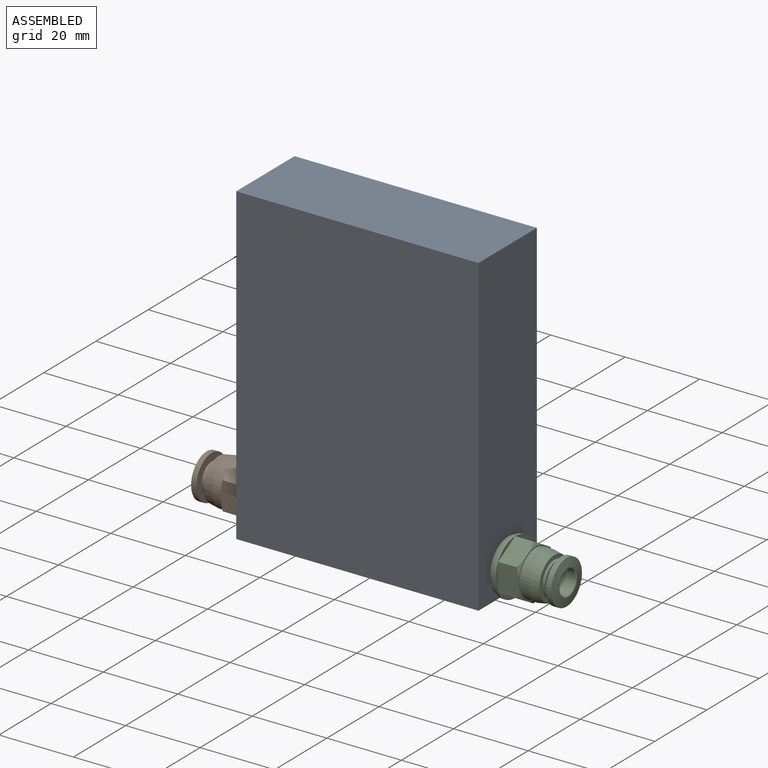
[diagram: assembled view]
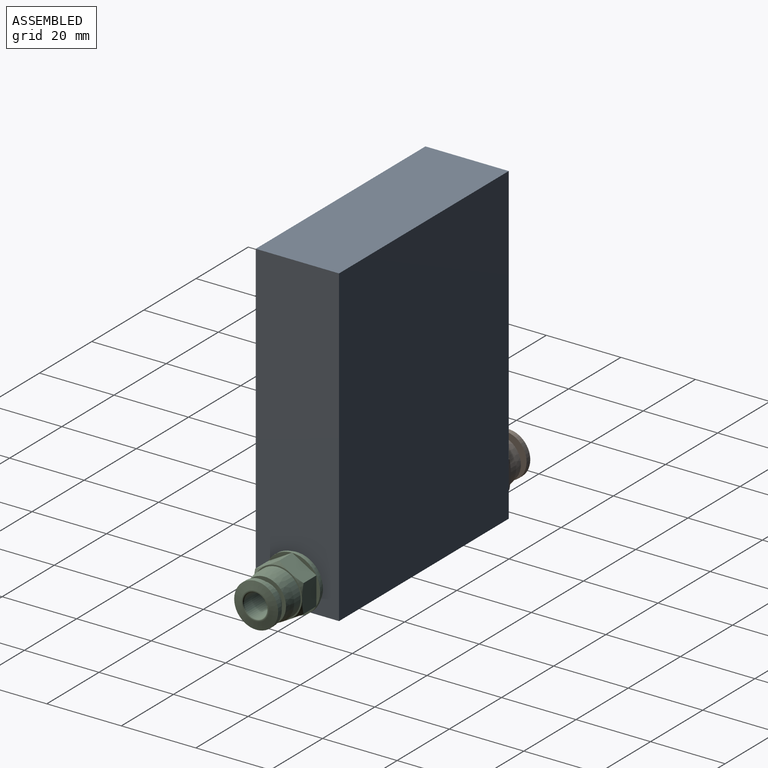
[diagram: assembled view, second angle]
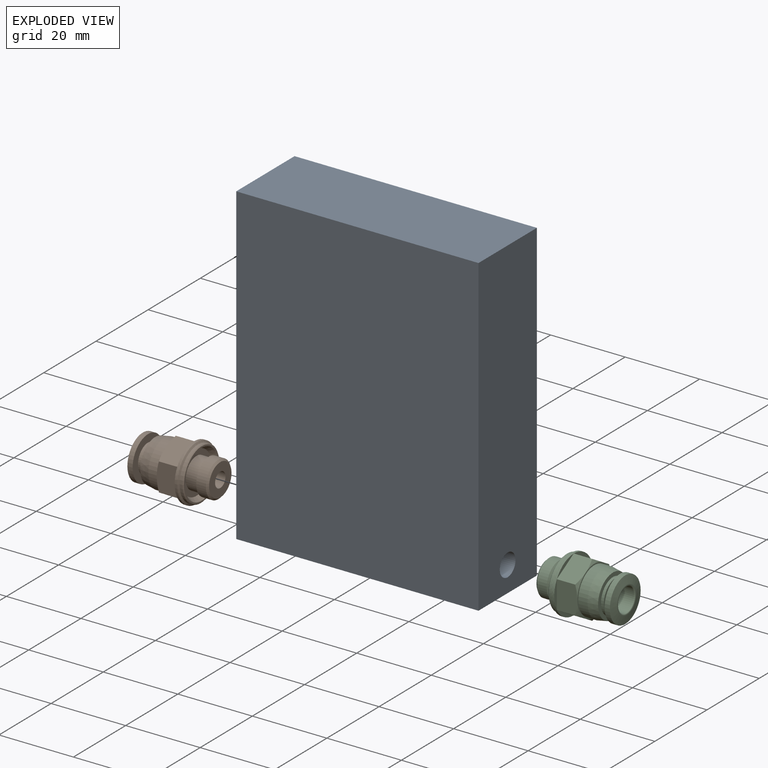
[diagram: exploded view]
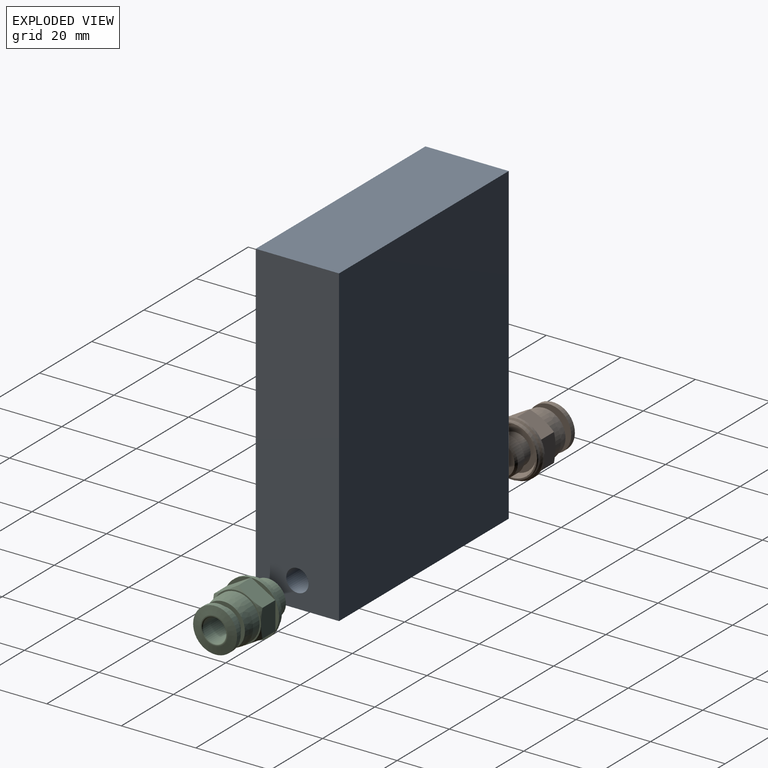
[diagram: exploded view, second angle]
ASSEMBLY  parts=3 mates=2
PART A: 7 faces, bbox 65x22.4x84.3 mm
  f0: plane 84.33x22.35mm, normal (1,0,0), area 1856.6mm2, adj f1,f3,f4,f5,f6
  f1: plane 84.33x65.02mm, normal (0,1,0), area 5483.3mm2, adj f0,f2,f4,f5
  f2: plane 84.33x22.35mm, normal (-1,0,0), area 1856.6mm2, adj f1,f3,f4,f5,f6
  f3: plane 84.33x65.02mm, normal (0,-1,0), area 5483.3mm2, adj f0,f2,f4,f5
  f4: plane 65.02x22.35mm, normal (0,0,1), area 1453.4mm2, adj f0,f1,f2,f3
  f5: plane 65.02x22.35mm, normal (0,0,-1), area 1453.4mm2, adj f0,f1,f2,f3
  f6: cylinder r=3mm len=65.02mm, axis (-1,0,0), area 1225.7mm2, adj f0,f2
PART B: 46 faces, bbox 15x21.2x15 mm
  f0: torus R=3.45mm, axis (0,1,0), area 4.8mm2, adj f1,f18,f20
  f1: cylinder r=3.15mm len=16.1mm, axis (0,1,0), area 318.7mm2, adj f0,f18,f19
  f2: cylinder r=2mm len=4.8mm, axis (0,1,0), area 60.3mm2, adj f19,f21
  f3: cone r=5.9mm half-angle=79.9deg, axis (0,-1,0), area 68.6mm2, adj f4,f20
  f4: cylinder r=5.9mm len=11.8mm, axis (0,1,0), area 51.9mm2, adj f3,f22
  f5: cone r=4.8mm half-angle=45deg, axis (0,1,0), area 20.2mm2, adj f6,f21
  f6: cylinder r=4.8mm len=9.6mm, axis (0,1,0), area 78.3mm2, adj f5,f8
  f7: cylinder r=3.85mm len=7.7mm, axis (0,1,0), area 27.8mm2, adj f22,f23
  f8: cone r=4.8mm half-angle=60deg, axis (0,-1,0), area 22.6mm2, adj f6,f9
  f9: cylinder r=4.1mm len=8.2mm, axis (0,1,0), area 74.7mm2, adj f8,f45
  f10: cylinder r=4.6mm len=9.2mm, axis (0,1,0), area 21.7mm2, adj f23,f24
  f11: cone r=6.15mm half-angle=10.2deg, axis (0,-1,0), area 94.6mm2, adj f12,f24
  f12: cylinder r=6.15mm len=12.3mm, axis (0,1,0), area 96.6mm2, adj f11,f25
  f13: cylinder r=7.5mm len=15mm, axis (0,1,0), area 34.1mm2, adj f14,f26,f27,f28,f29,f30,f31,f32
  f14: cone r=7.5mm half-angle=60deg, axis (0,1,0), area 26.3mm2, adj f13,f15
  f15: cylinder r=7mm len=14mm, axis (0,1,0), area 35.2mm2, adj f14,f16
  f16: cone r=7mm half-angle=45deg, axis (0,1,0), area 12.3mm2, adj f15,f44
  f17: cone r=6.42mm half-angle=30deg, axis (0,-1,0), area 61.1mm2, adj f44,f45
  f18: torus R=3.45mm, axis (0,1,0), area 4.8mm2, adj f0,f1,f20
  f19: plane 6.3x6.3mm, normal (0,1,0), area 18.6mm2, adj f1,f2
  f20: plane 7.3x7.3mm, normal (0,1,0), area 4.5mm2, adj f0,f3,f18
  f21: plane 8.6x8.6mm, normal (0,-1,0), area 45.5mm2, adj f2,f5
  f22: plane 11.8x11.8mm, normal (0,-1,0), area 62.8mm2, adj f4,f7
  f23: plane 9.2x9.2mm, normal (0,1,0), area 19.9mm2, adj f7,f10
  f24: plane 11.4x11.4mm, normal (0,1,0), area 35.6mm2, adj f10,f11
  f25: plane 13x13mm, normal (0,1,0), area 13.9mm2, adj f12,f26,f27,f28,f29,f30,f31
  f26: cone r=7.5mm half-angle=60deg, axis (0,-1,0), area 2.6mm2, adj f13,f25,f32,f33
  f27: cone r=7.5mm half-angle=60deg, axis (0,-1,0), area 2.6mm2, adj f13,f25,f33,f34
  f28: cone r=7.5mm half-angle=60deg, axis (0,-1,0), area 2.6mm2, adj f13,f25,f34,f35
  f29: cone r=7.5mm half-angle=60deg, axis (0,-1,0), area 2.6mm2, adj f13,f25,f35,f36
  f30: cone r=7.5mm half-angle=60deg, axis (0,-1,0), area 2.6mm2, adj f13,f25,f36,f37
  f31: cone r=7.5mm half-angle=60deg, axis (0,-1,0), area 2.6mm2, adj f13,f25,f32,f37
  f32: plane 6.49x5.5mm, normal (-0.87,0,-0.5), area 39.7mm2, adj f13,f26,f31,f38
  f33: plane 7.49x5.5mm, normal (0,0,-1), area 39.7mm2, adj f13,f26,f27,f39
  f34: plane 6.49x5.5mm, normal (0.87,0,-0.5), area 39.7mm2, adj f13,f27,f28,f40
  f35: plane 6.49x5.5mm, normal (0.87,0,0.5), area 39.7mm2, adj f13,f28,f29,f41
  f36: plane 7.49x5.5mm, normal (0,0,1), area 39.7mm2, adj f13,f29,f30,f42
  f37: plane 6.49x5.5mm, normal (-0.87,0,0.5), area 39.7mm2, adj f13,f30,f31,f43
  f38: plane 6.48x3.74mm, normal (0,1,0), area 5.1mm2, adj f13,f32
  f39: plane 7.48x1mm, normal (0,1,0), area 5.1mm2, adj f13,f33
  f40: plane 6.48x3.74mm, normal (0,1,0), area 5.1mm2, adj f13,f34
  f41: plane 6.48x3.74mm, normal (0,1,0), area 5.1mm2, adj f13,f35
  f42: plane 7.48x1mm, normal (0,1,0), area 5.1mm2, adj f13,f36
  f43: plane 6.48x3.74mm, normal (0,1,0), area 5.1mm2, adj f13,f37
  f44: plane 13.6x13.6mm, normal (0,-1,0), area 16mm2, adj f16,f17
  f45: plane 11.21x11.21mm, normal (0,-1,0), area 45.9mm2, adj f9,f17
PART C: same geometry as B
PLACE A at identity
PLACE B rot(axis=(0.58,-0.58,0.58),120deg) t=(-27.51,0,6.86)mm
PLACE C rot(axis=(-0.58,-0.58,-0.58),120deg) t=(27.51,0,6.86)mm
MATE fastened C.f1 <-> A.f6  axis (-1,0,0) through (32.51,0,6.86)mm
MATE fastened B.f1 <-> A.f6  axis (1,0,0) through (-32.51,0,6.86)mm
